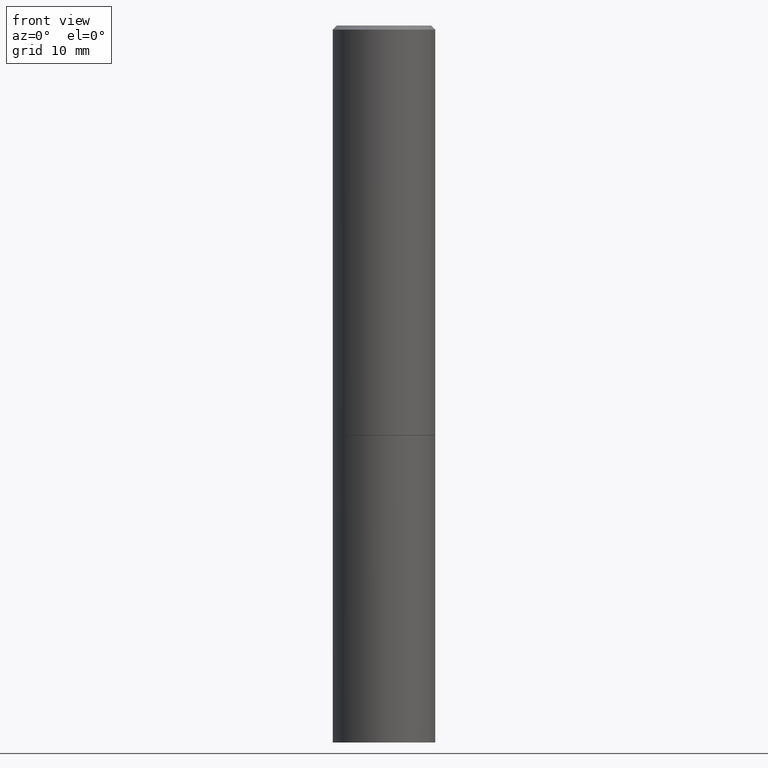
[diagram: clean part render]
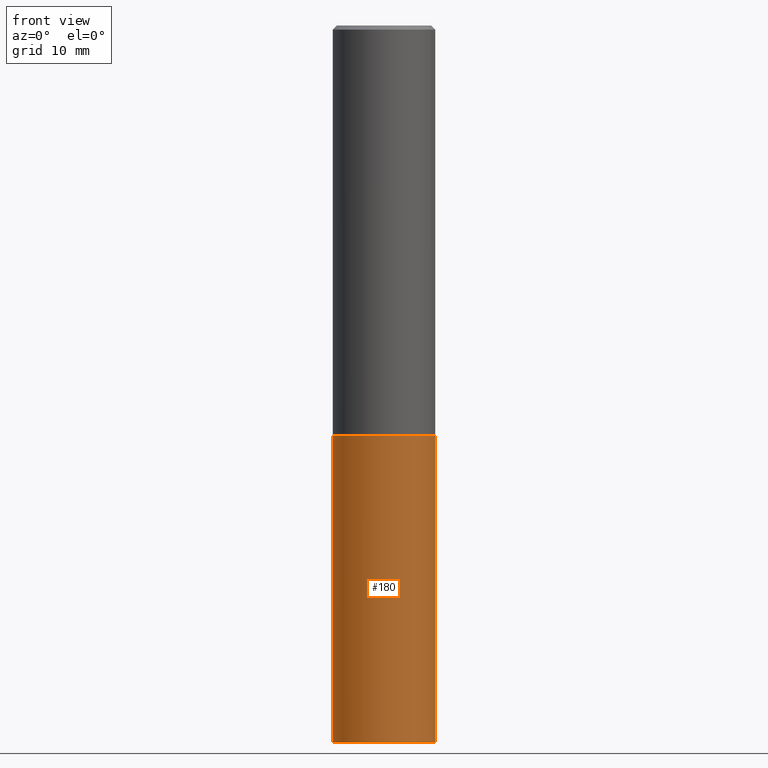
[diagram: same view with one face highlighted and labeled with its STEP entity id]
A machine part, front view. The second image highlights one B-rep face of the part: STEP entity #180.
In plain terms, the highlighted cylindrical surface (partial cylindrical patch) has radius 6.35 mm, axis along (-0, 0, 1).
Its self-contained STEP definition (entity closure, byte-faithful):
#19 = VERTEX_POINT ( 'NONE', #248 ) ;
#24 = FACE_OUTER_BOUND ( 'NONE', #183, .T. ) ;
#30 = CARTESIAN_POINT ( 'NONE',  ( 8.559140821647976968E-29, -1.222018468595100934E-14, -3.500000000000000000 ) ) ;
#31 = AXIS2_PLACEMENT_3D ( 'NONE', #335, #245, #361 ) ;
#42 = VERTEX_POINT ( 'NONE', #56 ) ;
#45 = ORIENTED_EDGE ( 'NONE', *, *, #257, .F. ) ;
#53 = CARTESIAN_POINT ( 'NONE',  ( 0.2500000000000000000, -1.745740669421566678E-15, 1.219044193948983948E-29 ) ) ;
#56 = CARTESIAN_POINT ( 'NONE',  ( 0.2500000000000000000, -1.396592535537257602E-14, -3.500000000000000000 ) ) ;
#59 = AXIS2_PLACEMENT_3D ( 'NONE', #315, #116, #67 ) ;
#67 = DIRECTION ( 'NONE',  ( 1.000000000000000000, -6.982962677686266711E-15, 0.000000000000000000 ) ) ;
#98 = DIRECTION ( 'NONE',  ( 1.000000000000000000, -6.982962677686270655E-15, 0.000000000000000000 ) ) ;
#105 = DIRECTION ( 'NONE',  ( -2.445468806185136877E-29, 3.491481338843145188E-15, 1.000000000000000000 ) ) ;
#116 = DIRECTION ( 'NONE',  ( -2.445468806185136597E-29, 3.491481338843145583E-15, 1.000000000000000000 ) ) ;
#117 = VERTEX_POINT ( 'NONE', #276 ) ;
#139 = CYLINDRICAL_SURFACE ( 'NONE', #31, 0.2500000000000000000 ) ;
#148 = EDGE_CURVE ( 'NONE', #189, #19, #363, .T. ) ;
#159 = ORIENTED_EDGE ( 'NONE', *, *, #148, .F. ) ;
#160 = CIRCLE ( 'NONE', #327, 0.2500000000000000000 ) ;
#165 = ORIENTED_EDGE ( 'NONE', *, *, #321, .T. ) ;
#173 = DIRECTION ( 'NONE',  ( -2.445468806185136877E-29, 3.491481338843145188E-15, 1.000000000000000000 ) ) ;
#180 = ADVANCED_FACE ( 'NONE', ( #24 ), #139, .T. ) ;
#183 = EDGE_LOOP ( 'NONE', ( #159, #165, #205, #45 ) ) ;
#189 = VERTEX_POINT ( 'NONE', #246 ) ;
#194 = CARTESIAN_POINT ( 'NONE',  ( -0.2500000000000000000, 1.776356839400250465E-15, -1.229733772563726445E-29 ) ) ;
#196 = EDGE_CURVE ( 'NONE', #42, #117, #303, .T. ) ;
#200 = CIRCLE ( 'NONE', #59, 0.2500000000000000000 ) ;
#205 = ORIENTED_EDGE ( 'NONE', *, *, #196, .T. ) ;
#216 = DIRECTION ( 'NONE',  ( -2.445468806185136597E-29, 3.491481338843145583E-15, 1.000000000000000000 ) ) ;
#245 = DIRECTION ( 'NONE',  ( -2.445468806185136597E-29, 3.491481338843145583E-15, 1.000000000000000000 ) ) ;
#246 = CARTESIAN_POINT ( 'NONE',  ( -0.2500000000000000000, -7.825216842418397817E-15, -3.500000000000000000 ) ) ;
#248 = CARTESIAN_POINT ( 'NONE',  ( -0.2500000000000000000, -7.825216842418397817E-15, -1.999999999999999778 ) ) ;
#257 = EDGE_CURVE ( 'NONE', #19, #117, #200, .T. ) ;
#271 = VECTOR ( 'NONE', #105, 39.37007874015748143 ) ;
#276 = CARTESIAN_POINT ( 'NONE',  ( 0.2500000000000000000, -8.728703347107857054E-15, -1.999999999999999778 ) ) ;
#303 = LINE ( 'NONE', #53, #338 ) ;
#315 = CARTESIAN_POINT ( 'NONE',  ( 4.890937612370272633E-29, -6.982962677686290376E-15, -1.999999999999999778 ) ) ;
#321 = EDGE_CURVE ( 'NONE', #189, #42, #160, .T. ) ;
#327 = AXIS2_PLACEMENT_3D ( 'NONE', #30, #216, #98 ) ;
#335 = CARTESIAN_POINT ( 'NONE',  ( 0.000000000000000000, 0.000000000000000000, 0.000000000000000000 ) ) ;
#338 = VECTOR ( 'NONE', #173, 39.37007874015748143 ) ;
#361 = DIRECTION ( 'NONE',  ( 1.000000000000000000, -6.982962677686266711E-15, 4.876176775795935793E-29 ) ) ;
#363 = LINE ( 'NONE', #194, #271 ) ;